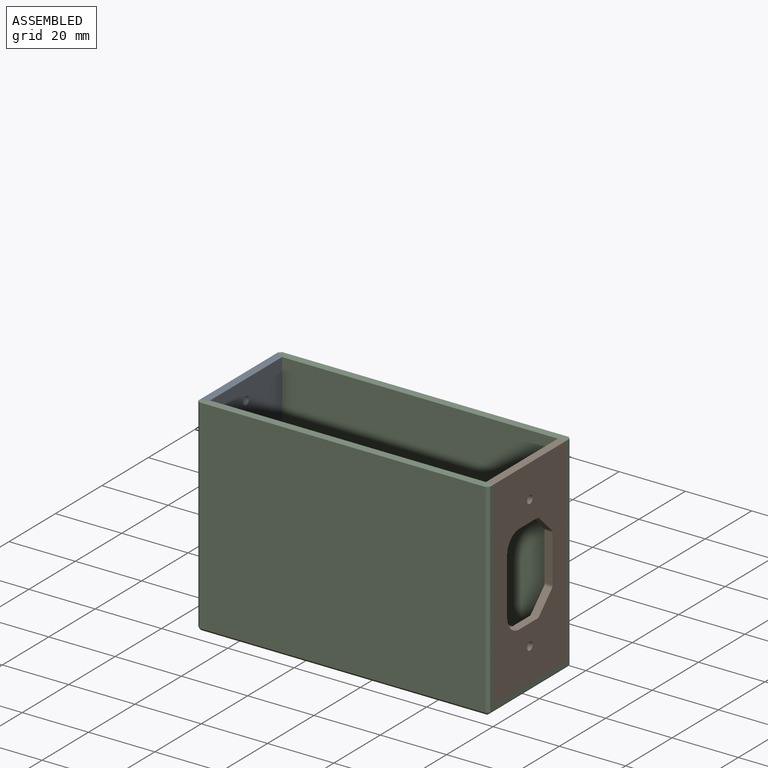
[diagram: assembled view]
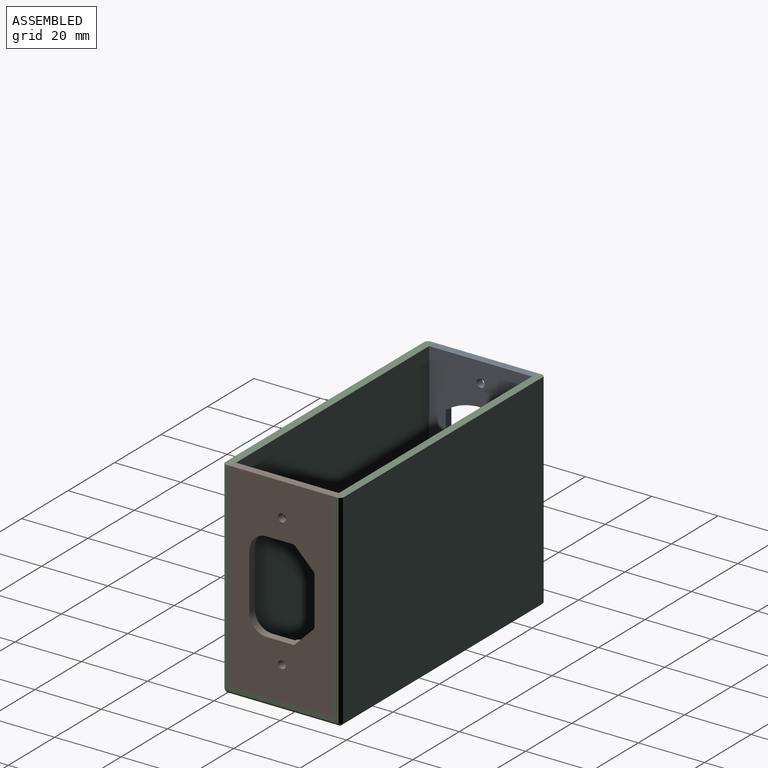
[diagram: assembled view, second angle]
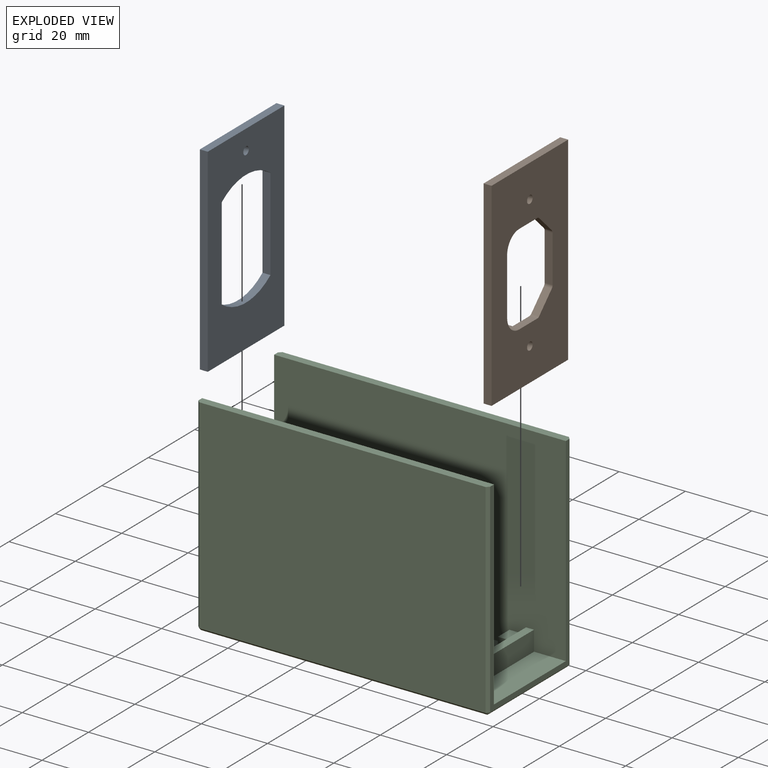
[diagram: exploded view]
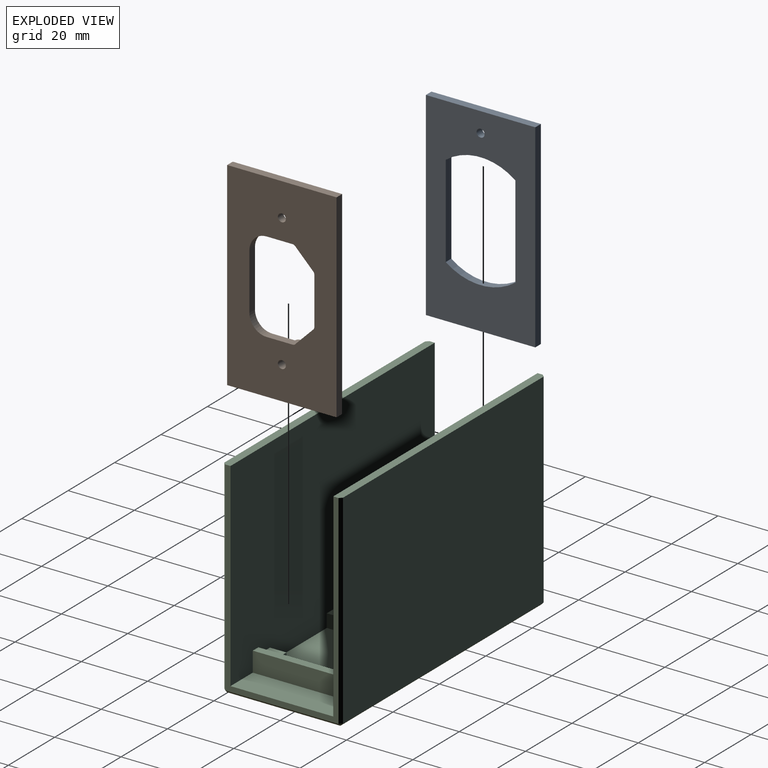
[diagram: exploded view, second angle]
ASSEMBLY  parts=3 mates=2
PART A: 11 faces, bbox 60x2.4x33 mm
  f0: cylinder r=17.45mm len=21mm, axis (0,1,0), area 54.1mm2, adj f1,f8,f9,f10
  f1: plane 27.88x2.4mm, normal (0,0,-1), area 66.9mm2, adj f0,f2,f9,f10
  f2: cylinder r=17.45mm len=21mm, axis (0,1,0), area 54.1mm2, adj f1,f8,f9,f10
  f3: plane 33x2.4mm, normal (1,0,0), area 79.2mm2, adj f4,f7,f9,f10
  f4: plane 60x2.4mm, normal (0,0,1), area 144mm2, adj f3,f5,f9,f10
  f5: plane 33x2.4mm, normal (-1,0,0), area 79.2mm2, adj f4,f7,f9,f10
  f6: cylinder r=1.2mm len=2.4mm, axis (0,1,0), area 18.1mm2, adj f9,f10
  f7: plane 60x2.4mm, normal (0,0,-1), area 144mm2, adj f3,f5,f9,f10
  f8: plane 27.88x2.4mm, normal (0,0,1), area 66.9mm2, adj f0,f2,f9,f10
  f9: plane 60x33mm, normal (0,-1,0), area 1289.6mm2, adj f0,f1,f2,f3,f4,f5,f6,f7
  f10: plane 60x33mm, normal (0,1,0), area 1289.6mm2, adj f0,f1,f2,f3,f4,f5,f6,f7
PART B: 22 faces, bbox 60x33x8.4 mm
  f0: plane 5.41x5.41mm, normal (0.71,-0.71,0), area 18.4mm2, adj f1,f15,f18,f19
  f1: cylinder r=1.2mm len=2.4mm, axis (0,0,-1), area 2.3mm2, adj f0,f2,f18,f19
  f2: plane 14.17x2.4mm, normal (0,-1,0), area 34mm2, adj f1,f3,f18,f19
  f3: cylinder r=1.2mm len=2.4mm, axis (0,0,-1), area 2.3mm2, adj f2,f4,f18,f19
  f4: plane 5.41x5.41mm, normal (-0.71,-0.71,0), area 18.4mm2, adj f3,f5,f18,f19
  f5: cylinder r=1.2mm len=2.4mm, axis (0,0,-1), area 2.3mm2, adj f4,f6,f18,f19
  f6: plane 7.79x2.4mm, normal (-1,0,0), area 18.7mm2, adj f5,f7,f18,f19
  f7: cylinder r=5.2mm len=5.2mm, axis (0,0,-1), area 19.6mm2, adj f6,f8,f18,f19
  f8: plane 17x2.4mm, normal (0,1,0), area 40.8mm2, adj f7,f9,f18,f19
  f9: cylinder r=5.2mm len=5.2mm, axis (0,0,-1), area 19.6mm2, adj f8,f10,f18,f19
  f10: plane 7.79x2.4mm, normal (1,0,0), area 18.7mm2, adj f9,f15,f18,f19
  f11: plane 33x2.4mm, normal (-1,0,0), area 79.2mm2, adj f12,f16,f18,f19
  f12: plane 60x2.4mm, normal (0,-1,0), area 144mm2, adj f11,f13,f18,f19
  f13: plane 33x2.4mm, normal (1,0,0), area 79.2mm2, adj f12,f16,f18,f19
  f14: cylinder r=1.2mm len=8.4mm, axis (0,0,-1), area 63.3mm2, adj f18,f21
  f15: cylinder r=1.2mm len=2.4mm, axis (0,0,-1), area 2.3mm2, adj f0,f10,f18,f19
  f16: plane 60x2.4mm, normal (0,1,0), area 144mm2, adj f11,f13,f18,f19
  f17: cylinder r=1.2mm len=2.4mm, axis (0,0,-1), area 18.1mm2, adj f18,f19
  f18: plane 60x33mm, normal (0,0,1), area 1483.1mm2, adj f0,f1,f2,f3,f4,f5,f6,f7
  f19: plane 60x33mm, normal (0,0,-1), area 1449.1mm2, adj f0,f1,f2,f3,f4,f5,f6,f7
  f20: cylinder r=3.5mm len=7mm, axis (0,0,1), area 131.9mm2, adj f19,f21
  f21: plane 7x7mm, normal (0,0,-1), area 34mm2, adj f14,f20
PART C: 57 faces, bbox 88x35.8x62.4 mm
  f0: plane 31x9.6mm, normal (0,0,1), area 297.6mm2, adj f1,f10,f14,f39
  f1: plane 88x60mm, normal (0,-1,0), area 5191.2mm2, adj f0,f2,f3,f5,f8,f10,f13,f17
  f2: plane 64x31mm, normal (0,0,1), area 1834mm2, adj f1,f14,f16,f17,f19,f20,f21,f23
  f3: plane 31x9.6mm, normal (0,0,1), area 219.6mm2, adj f1,f4,f5,f6,f8,f11,f14
  f4: plane 6x1.6mm, normal (0,-1,0), area 9.6mm2, adj f3,f5,f11,f41
  f5: plane 31x7.6mm, normal (-1,0,0), area 206.8mm2, adj f1,f3,f4,f6,f14,f37,f42
  f6: plane 6x1.6mm, normal (0,1,0), area 9.6mm2, adj f3,f5,f11,f44
  f7: plane 86.4x61.6mm, normal (0,1,0), area 5322.2mm2, adj f13,f50,f54,f56
  f8: plane 61.6x34.2mm, normal (-1,0,0), area 246.7mm2, adj f1,f3,f13,f14,f15,f47,f53,f56
  f9: plane 86.4x61.6mm, normal (0,-1,0), area 5322.2mm2, adj f15,f45,f47,f48
  f10: plane 61.6x34.2mm, normal (1,0,0), area 246.7mm2, adj f0,f1,f13,f14,f15,f45,f49,f50
  f11: plane 13x1.6mm, normal (1,0,0), area 20.8mm2, adj f3,f4,f6,f43
  f12: plane 86.4x34.2mm, normal (0,0,-1), area 2843.9mm2, adj f41,f42,f43,f44,f48,f49,f53,f54
  f13: plane 88x2.4mm, normal (0,0,1), area 210.6mm2, adj f1,f7,f8,f10,f50,f56
  f14: plane 88x60mm, normal (0,1,0), area 5191.2mm2, adj f0,f2,f3,f5,f8,f10,f15,f27
  f15: plane 88x2.4mm, normal (0,0,1), area 210.6mm2, adj f8,f9,f10,f14,f45,f47
  f16: plane 5x4mm, normal (0,-1,0), area 20mm2, adj f2,f17,f18,f38
  f17: plane 5x4mm, normal (-1,0,0), area 20mm2, adj f1,f2,f16,f18
  f18: plane 5x5mm, normal (0,0,1), area 25mm2, adj f1,f16,f17,f38
  f19: plane 5x4mm, normal (-1,0,0), area 20mm2, adj f1,f2,f20,f22
  f20: plane 5x4mm, normal (0,-1,0), area 20mm2, adj f2,f19,f21,f22
  f21: plane 5x4mm, normal (1,0,0), area 20mm2, adj f1,f2,f20,f22
  f22: plane 5x5mm, normal (0,0,1), area 25mm2, adj f1,f19,f20,f21
  f23: plane 5x4mm, normal (0,-1,0), area 20mm2, adj f2,f24,f25,f36
  f24: plane 5x4mm, normal (1,0,0), area 20mm2, adj f1,f2,f23,f25
  f25: plane 5x5mm, normal (0,0,1), area 25mm2, adj f1,f23,f24,f36
  f26: plane 5x4mm, normal (0,1,0), area 20mm2, adj f2,f27,f28,f36
  f27: plane 5x4mm, normal (1,0,0), area 20mm2, adj f2,f14,f26,f28
  f28: plane 5x5mm, normal (0,0,1), area 25mm2, adj f14,f26,f27,f36
  f29: plane 5x4mm, normal (-1,0,0), area 20mm2, adj f2,f14,f31,f32
  f30: plane 5x4mm, normal (1,0,0), area 20mm2, adj f2,f14,f31,f32
  f31: plane 5x4mm, normal (0,1,0), area 20mm2, adj f2,f29,f30,f32
  f32: plane 5x5mm, normal (0,0,1), area 25mm2, adj f14,f29,f30,f31
  f33: plane 5x4mm, normal (0,1,0), area 20mm2, adj f2,f34,f35,f38
  f34: plane 5x4mm, normal (-1,0,0), area 20mm2, adj f2,f14,f33,f35
  f35: plane 5x5mm, normal (0,0,1), area 25mm2, adj f14,f33,f34,f38
  f36: plane 31x6mm, normal (1,0,0), area 146mm2, adj f1,f2,f14,f23,f25,f26,f28,f37
  f37: plane 31x2.4mm, normal (0,0,1), area 74.4mm2, adj f1,f5,f14,f36
  f38: plane 31x6mm, normal (-1,0,0), area 146mm2, adj f1,f2,f14,f16,f18,f33,f35,f40
  f39: plane 31x6mm, normal (1,0,0), area 186mm2, adj f0,f1,f14,f40
  f40: plane 31x2.4mm, normal (0,0,1), area 74.4mm2, adj f1,f14,f38,f39
  f41: plane 7.6x0.8mm, normal (0,-0.71,-0.71), area 7.7mm2, adj f4,f12,f42,f43
  f42: plane 14.6x0.8mm, normal (-0.71,0,-0.71), area 15.6mm2, adj f5,f12,f41,f44
  f43: plane 14.6x0.8mm, normal (0.71,0,-0.71), area 15.6mm2, adj f11,f12,f41,f44
  f44: plane 7.6x0.8mm, normal (0,0.71,-0.71), area 7.7mm2, adj f6,f12,f42,f43
  f45: plane 61.6x0.8mm, normal (0.71,-0.71,0), area 69.7mm2, adj f9,f10,f15,f46
  f46: plane 0.8x0.8mm, normal (0.58,-0.58,-0.58), area 0.6mm2, adj f45,f48,f49
  f47: plane 61.6x0.8mm, normal (-0.71,-0.71,0), area 69.7mm2, adj f8,f9,f15,f51
  f48: plane 86.4x0.8mm, normal (0,-0.71,-0.71), area 97.8mm2, adj f9,f12,f46,f51
  f49: plane 34.2x0.8mm, normal (0.71,0,-0.71), area 38.7mm2, adj f10,f12,f46,f52
  f50: plane 61.6x0.8mm, normal (0.71,0.71,0), area 69.7mm2, adj f7,f10,f13,f52
  f51: plane 0.8x0.8mm, normal (-0.58,-0.58,-0.58), area 0.6mm2, adj f47,f48,f53
  f52: plane 0.8x0.8mm, normal (0.58,0.58,-0.58), area 0.6mm2, adj f49,f50,f54
  f53: plane 34.2x0.8mm, normal (-0.71,0,-0.71), area 38.7mm2, adj f8,f12,f51,f55
  f54: plane 86.4x0.8mm, normal (0,0.71,-0.71), area 97.8mm2, adj f7,f12,f52,f55
  f55: plane 0.8x0.8mm, normal (-0.58,0.58,-0.58), area 0.6mm2, adj f53,f54,f56
  f56: plane 61.6x0.8mm, normal (-0.71,0.71,0), area 69.7mm2, adj f7,f8,f13,f55
PLACE A rot(axis=(-0.58,-0.58,-0.58),120deg) t=(-97.77,-1.01,20.34)mm
PLACE B rot(axis=(0,1,0),90deg) t=(40.43,-1.01,20.34)mm
PLACE C t=(-26.17,-1.01,-9.66)mm
MATE fastened A.f5 <-> C.f3  axis (0,0,-1) through (-68.97,-1.01,-9.66)mm
MATE fastened B.f13 <-> C.f0  axis (0,0,-1) through (16.63,-1.01,-9.66)mm
